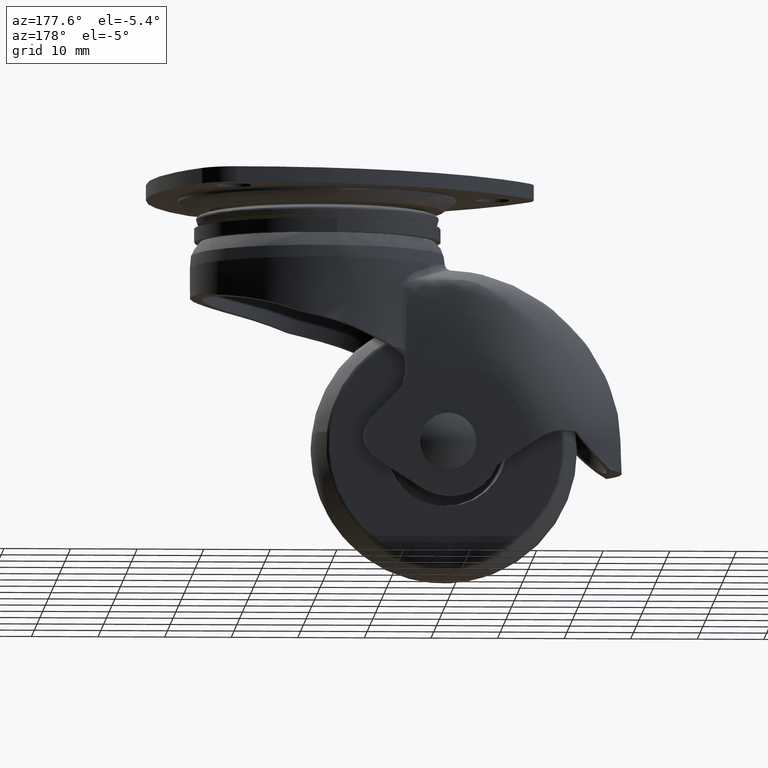
[diagram: clean part render]
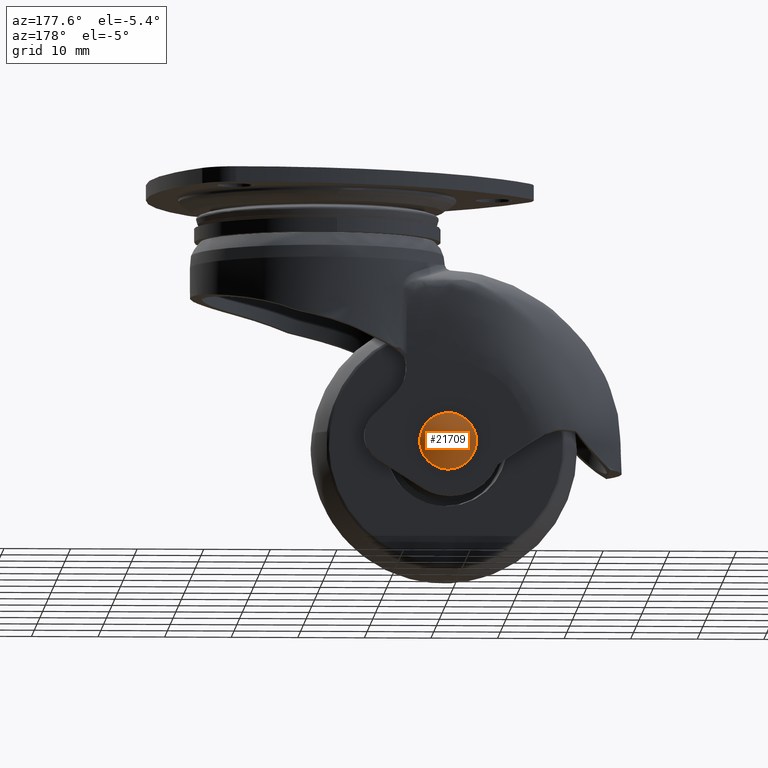
[diagram: same view with one face highlighted and labeled with its STEP entity id]
A machine part, auxiliary view. The second image highlights one B-rep face of the part: STEP entity #21709.
In plain terms, the highlighted face is a freeform B-spline surface patch.
Its self-contained STEP definition (entity closure, byte-faithful):
#21143=CARTESIAN_POINT('',(-14.779709512969260,15.483315000000051,-39.498354502583922));
#21144=VERTEX_POINT('',#21143);
#21145=CARTESIAN_POINT('',(-19.0,15.483315000000051,-44.250000000000000));
#21146=VERTEX_POINT('',#21145);
#21147=CARTESIAN_POINT('',(-14.779709512969255,15.483315000000053,-39.498354502583922));
#21148=CARTESIAN_POINT('',(-14.749999999999998,15.483315000000053,-39.748297491353206));
#21149=CARTESIAN_POINT('',(-14.750000000000000,15.483315000000051,-40.0));
#21150=CARTESIAN_POINT('',(-14.750000000000005,15.483315000000044,-44.250000000000000));
#21151=CARTESIAN_POINT('',(-19.0,15.483315000000051,-44.250000000000000));
#21159=(BOUNDED_CURVE()B_SPLINE_CURVE(2,(#21147,#21148,#21149,#21150,#21151),.UNSPECIFIED.,.F.,.U.)B_SPLINE_CURVE_WITH_KNOTS((3,2,3),(0.229562473505645,0.250000000000000,0.500000000000000),.UNSPECIFIED.)CURVE()GEOMETRIC_REPRESENTATION_ITEM()RATIONAL_B_SPLINE_CURVE((0.956026754168286,0.976055948321932,1.0,0.707106781186548,1.0))REPRESENTATION_ITEM(''));
#21160=EDGE_CURVE('',#21144,#21146,#21159,.T.);
#21201=CARTESIAN_POINT('',(-23.242073126429549,15.483315000000330,-40.259452481216890));
#21202=VERTEX_POINT('',#21201);
#21208=CARTESIAN_POINT('',(-19.0,15.483315000000051,-44.250000000000000));
#21209=CARTESIAN_POINT('',(-22.998004383553756,15.483315000000056,-44.249999999999993));
#21210=CARTESIAN_POINT('',(-23.242073126429553,15.483315000000328,-40.259452481216890));
#21218=(BOUNDED_CURVE()B_SPLINE_CURVE(2,(#21208,#21209,#21210),.UNSPECIFIED.,.F.,.U.)B_SPLINE_CURVE_WITH_KNOTS((3,3),(0.500000000000000,0.739333117287632),.UNSPECIFIED.)CURVE()GEOMETRIC_REPRESENTATION_ITEM()RATIONAL_B_SPLINE_CURVE((1.0,0.719603811635871,0.976072373965799))REPRESENTATION_ITEM(''));
#21219=EDGE_CURVE('',#21146,#21202,#21218,.T.);
#21242=CARTESIAN_POINT('',(-19.0,15.483315000000051,-35.750000000000007));
#21243=VERTEX_POINT('',#21242);
#21244=CARTESIAN_POINT('',(-19.0,15.483315000000051,-35.750000000000007));
#21245=CARTESIAN_POINT('',(-15.225258264931607,15.483315000000053,-35.750000000000014));
#21246=CARTESIAN_POINT('',(-14.779709512969257,15.483315000000044,-39.498354502583929));
#21254=(BOUNDED_CURVE()B_SPLINE_CURVE(2,(#21244,#21245,#21246),.UNSPECIFIED.,.F.,.U.)B_SPLINE_CURVE_WITH_KNOTS((3,3),(0.0,0.229562473505645),.UNSPECIFIED.)CURVE()GEOMETRIC_REPRESENTATION_ITEM()RATIONAL_B_SPLINE_CURVE((1.0,0.731050832864615,0.956026754168286))REPRESENTATION_ITEM(''));
#21255=EDGE_CURVE('',#21243,#21144,#21254,.T.);
#21257=CARTESIAN_POINT('',(-23.242073126429549,15.483315000000331,-40.259452481216890));
#21258=CARTESIAN_POINT('',(-23.250000000000000,15.483315000000053,-40.129847332772044));
#21259=CARTESIAN_POINT('',(-23.250000000000000,15.483315000000051,-40.0));
#21260=CARTESIAN_POINT('',(-23.250000000000000,15.483315000000044,-35.750000000000007));
#21261=CARTESIAN_POINT('',(-19.0,15.483315000000051,-35.750000000000007));
#21269=(BOUNDED_CURVE()B_SPLINE_CURVE(2,(#21257,#21258,#21259,#21260,#21261),.UNSPECIFIED.,.F.,.U.)B_SPLINE_CURVE_WITH_KNOTS((3,2,3),(0.739333117287632,0.750000000000000,1.0),.UNSPECIFIED.)CURVE()GEOMETRIC_REPRESENTATION_ITEM()RATIONAL_B_SPLINE_CURVE((0.976072373965799,0.987502969550676,1.0,0.707106781186548,1.0))REPRESENTATION_ITEM(''));
#21270=EDGE_CURVE('',#21202,#21243,#21269,.T.);
#21679=CARTESIAN_POINT('',(-23.311764688116835,14.169406772801324,-35.688139699561141));
#21680=CARTESIAN_POINT('',(-21.308536942559201,15.275392113927984,-35.382823732403189));
#21681=CARTESIAN_POINT('',(-16.691449807393507,15.275392113927984,-35.382823732403189));
#21682=CARTESIAN_POINT('',(-14.688213837107813,14.169394916503238,-35.688142972585659));
#21683=CARTESIAN_POINT('',(-23.617088384405481,15.275444637727206,-37.691404616397314));
#21684=CARTESIAN_POINT('',(-21.484465815988969,16.550000000000001,-37.515479091592297));
#21685=CARTESIAN_POINT('',(-16.515519924204760,16.550000000000001,-37.515479091592297));
#21686=CARTESIAN_POINT('',(-14.382888868328608,15.275431042847774,-37.691406492884077));
#21687=CARTESIAN_POINT('',(-23.617088384405481,15.275444637727206,-42.308595468539181));
#21688=CARTESIAN_POINT('',(-21.484465815988969,16.550000000000001,-42.484520999816709));
#21689=CARTESIAN_POINT('',(-16.515519924204760,16.550000000000001,-42.484520999816709));
#21690=CARTESIAN_POINT('',(-14.382888868328608,15.275431042847774,-42.308593592052290));
#21691=CARTESIAN_POINT('',(-23.311764667135961,14.169406696797896,-44.311860438096915));
#21692=CARTESIAN_POINT('',(-21.308536930530547,15.275392026780121,-44.617176413411357));
#21693=CARTESIAN_POINT('',(-16.691449819422239,15.275392026780121,-44.617176413411357));
#21694=CARTESIAN_POINT('',(-14.688213858088771,14.169394840499908,-44.311857165072311));
#21702=(BOUNDED_SURFACE()B_SPLINE_SURFACE(2,2,((#21679,#21683,#21687,#21691),(#21680,#21684,#21688,#21692),(#21681,#21685,#21689,#21693),(#21682,#21686,#21690,#21694)),.UNSPECIFIED.,.F.,.F.,.U.)B_SPLINE_SURFACE_WITH_KNOTS((3,1,3),(3,1,3),(0.0,4.786549122383501,9.573125717579359),(0.0,4.786655262933639,9.573310701975048),.UNSPECIFIED.)GEOMETRIC_REPRESENTATION_ITEM()RATIONAL_B_SPLINE_SURFACE(((1.152412525125096,1.076204572726145,1.076204572726145,1.152412530732691),(1.076207952398951,1.0,1.0,1.076207958006546),(1.076207952398951,1.0,1.0,1.076207958006546),(1.152413399893068,1.076205447494118,1.076205447494118,1.152413405500664)))REPRESENTATION_ITEM('')SURFACE());
#21703=ORIENTED_EDGE('',*,*,#21255,.T.);
#21704=ORIENTED_EDGE('',*,*,#21160,.T.);
#21705=ORIENTED_EDGE('',*,*,#21219,.T.);
#21706=ORIENTED_EDGE('',*,*,#21270,.T.);
#21707=EDGE_LOOP('',(#21703,#21704,#21705,#21706));
#21708=FACE_OUTER_BOUND('',#21707,.T.);
#21709=ADVANCED_FACE('',(#21708),#21702,.T.);